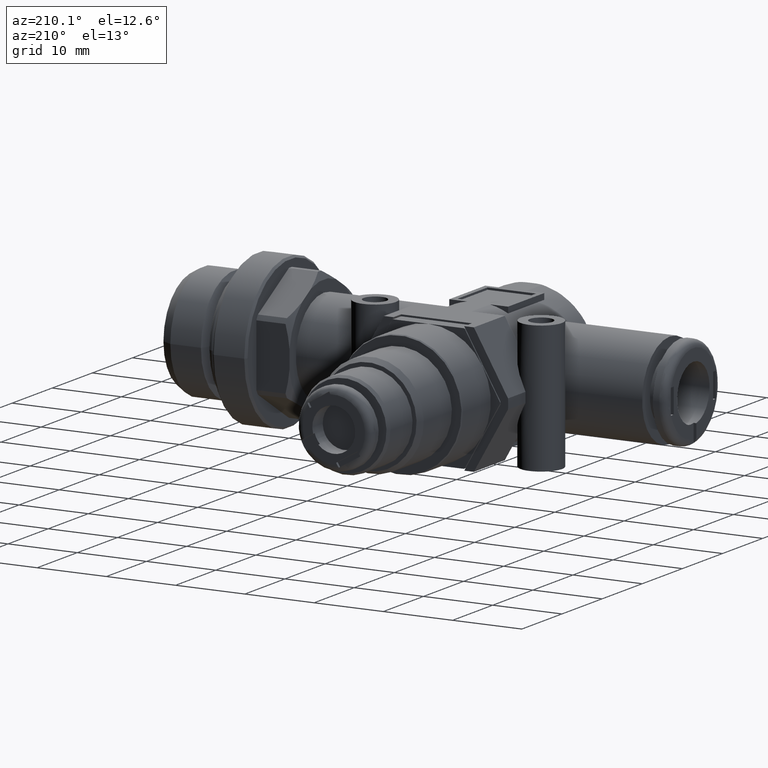
[diagram: clean part render]
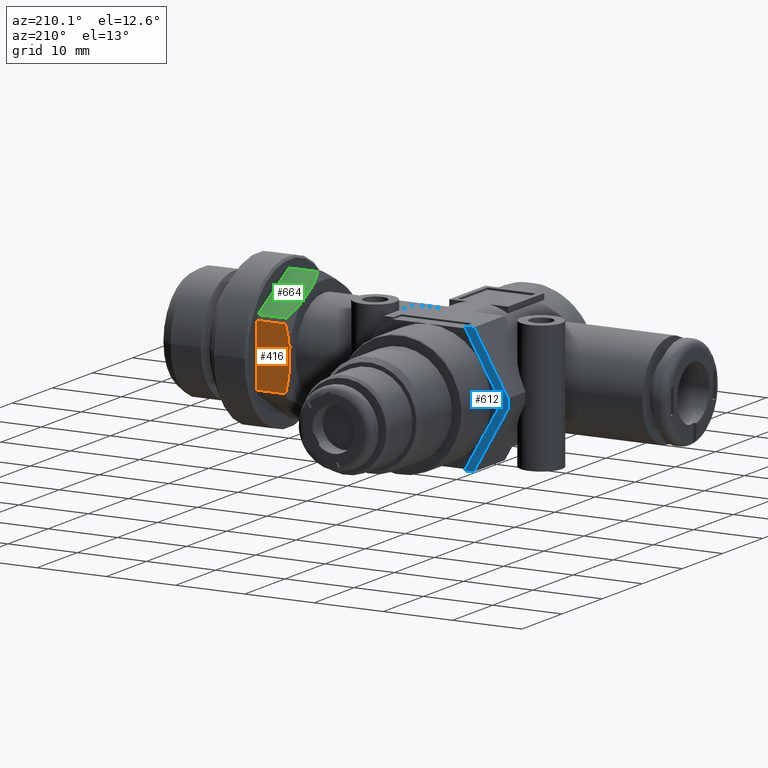
[diagram: same view with three faces highlighted in distinct colors, each labeled with its STEP entity id]
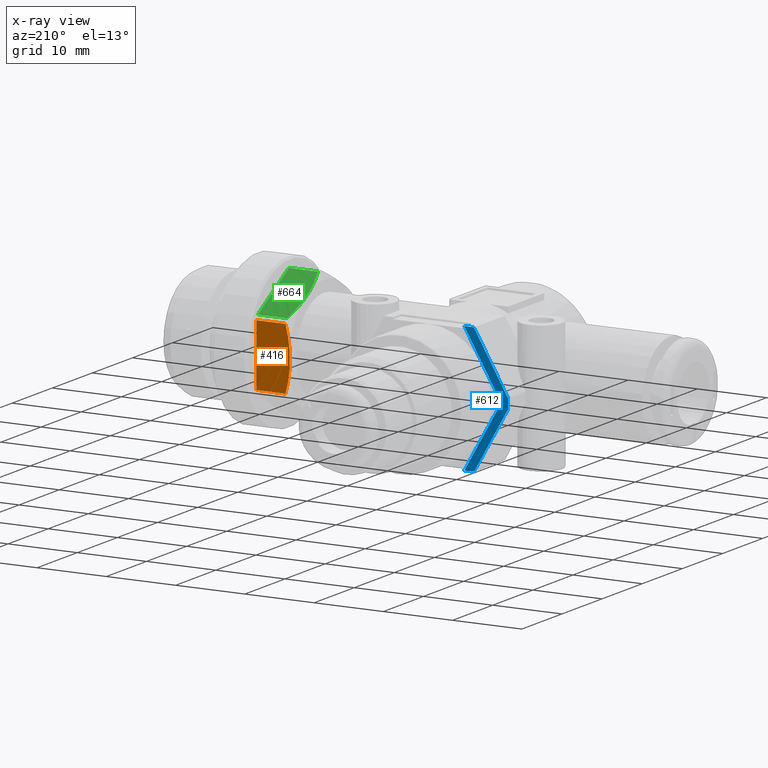
[diagram: x-ray of the same camera — body ghosted, the three highlighted faces saturated]
A machine part, auxiliary view with three faces highlighted in distinct colors.
The next image is the same camera in x-ray (body ghosted, the three faces saturated) — at least one of them is partly hidden behind the body in this view.
Their STEP definitions:

[orange] entity #416 — the highlighted planar face has unit normal (0, 1, 0).
#416 = ADVANCED_FACE( '', ( #923 ), #924, .T. );
#923 = FACE_OUTER_BOUND( '', #1608, .T. );
#924 = PLANE( '', #1609 );
#1608 = EDGE_LOOP( '', ( #2504, #2505, #2506, #2507, #2508, #2509 ) );
#1609 = AXIS2_PLACEMENT_3D( '', #2510, #2511, #2512 );
#2504 = ORIENTED_EDGE( '', *, *, #3780, .F. );
#2505 = ORIENTED_EDGE( '', *, *, #3867, .F. );
#2506 = ORIENTED_EDGE( '', *, *, #3868, .F. );
#2507 = ORIENTED_EDGE( '', *, *, #3869, .T. );
#2508 = ORIENTED_EDGE( '', *, *, #3870, .F. );
#2509 = ORIENTED_EDGE( '', *, *, #3871, .F. );
#2510 = CARTESIAN_POINT( '', ( 5.01000000000000, -4.90747728811182, -8.50000000000000 ) );
#2511 = DIRECTION( '', ( 0.000000000000000, 0.000000000000000, -1.00000000000000 ) );
#2512 = DIRECTION( '', ( -1.00000000000000, 0.000000000000000, 0.000000000000000 ) );
#3780 = EDGE_CURVE( '', #4461, #4463, #4464, .T. );
#3867 = EDGE_CURVE( '', #4597, #4461, #4598, .T. );
#3868 = EDGE_CURVE( '', #4599, #4597, #4600, .T. );
#3869 = EDGE_CURVE( '', #4599, #4601, #4602, .T. );
#3870 = EDGE_CURVE( '', #4603, #4601, #4604, .F. );
#3871 = EDGE_CURVE( '', #4463, #4603, #4605, .T. );
#4461 = VERTEX_POINT( '', #5596 );
#4463 = VERTEX_POINT( '', #5598 );
#4464 = LINE( '', #5599, #5600 );
#4597 = VERTEX_POINT( '', #5784 );
#4598 = B_SPLINE_CURVE_WITH_KNOTS( '', 3, ( #5785, #5786, #5787, #5788, #5789, #5790 ), .UNSPECIFIED., .F., .F., ( 4, 2, 4 ), ( 0.00678044909052865, 0.00838006962618044, 0.00997969016183223 ), .UNSPECIFIED. );
#4599 = VERTEX_POINT( '', #5791 );
#4600 = LINE( '', #5792, #5793 );
#4601 = VERTEX_POINT( '', #5794 );
#4602 = LINE( '', #5795, #5796 );
#4603 = VERTEX_POINT( '', #5797 );
#4604 = LINE( '', #5798, #5799 );
#4605 = B_SPLINE_CURVE_WITH_KNOTS( '', 3, ( #5800, #5801, #5802, #5803, #5804, #5805 ), .UNSPECIFIED., .F., .F., ( 4, 2, 4 ), ( 0.0126114541167359, 0.0142099054589780, 0.0158083568012202 ), .UNSPECIFIED. );
#5596 = CARTESIAN_POINT( '', ( 9.80000000000000, -1.30766968306220, -8.50000000000000 ) );
#5598 = CARTESIAN_POINT( '', ( 9.80000000000000, 1.30766968306220, -8.50000000000000 ) );
#5599 = CARTESIAN_POINT( '', ( 9.80000000000000, -4.90747728811182, -8.50000000000000 ) );
#5600 = VECTOR( '', #7001, 1000.00000000000 );
#5784 = CARTESIAN_POINT( '', ( 9.22264973081037, -4.46206230346462, -8.50000000000000 ) );
#5785 = CARTESIAN_POINT( '', ( 9.22264973081039, -4.46206230346462, -8.50000000000000 ) );
#5786 = CARTESIAN_POINT( '', ( 9.36126876643658, -3.94550428965619, -8.50000000000000 ) );
#5787 = CARTESIAN_POINT( '', ( 9.48308444475818, -3.42087643268451, -8.50000000000000 ) );
#5788 = CARTESIAN_POINT( '', ( 9.67949408845434, -2.36502868785143, -8.50000000000000 ) );
#5789 = CARTESIAN_POINT( '', ( 9.75356372534709, -1.83662427860852, -8.50000000000000 ) );
#5790 = CARTESIAN_POINT( '', ( 9.80000000000000, -1.30766968306220, -8.50000000000000 ) );
#5791 = CARTESIAN_POINT( '', ( 5.01000000000000, -4.46206230346462, -8.50000000000000 ) );
#5792 = CARTESIAN_POINT( '', ( 11.8000000000000, -4.46206230346462, -8.50000000000000 ) );
#5793 = VECTOR( '', #7107, 1000.00000000000 );
#5794 = CARTESIAN_POINT( '', ( 5.01000000000000, 4.46206230346462, -8.50000000000000 ) );
#5795 = CARTESIAN_POINT( '', ( 5.01000000000000, -4.90747728811182, -8.50000000000000 ) );
#5796 = VECTOR( '', #7108, 1000.00000000000 );
#5797 = CARTESIAN_POINT( '', ( 9.22264973081037, 4.46206230346462, -8.50000000000000 ) );
#5798 = CARTESIAN_POINT( '', ( 11.8000000000000, 4.46206230346462, -8.50000000000000 ) );
#5799 = VECTOR( '', #7109, 1000.00000000000 );
#5800 = CARTESIAN_POINT( '', ( 9.80000000000000, 1.30766968306220, -8.50000000000000 ) );
#5801 = CARTESIAN_POINT( '', ( 9.75343516979192, 1.83808865214399, -8.50000000000000 ) );
#5802 = CARTESIAN_POINT( '', ( 9.67849204307125, 2.37146689589535, -8.50000000000000 ) );
#5803 = CARTESIAN_POINT( '', ( 9.48167665029903, 3.42737993579828, -8.50000000000000 ) );
#5804 = CARTESIAN_POINT( '', ( 9.36069737749149, 3.94763354655977, -8.50000000000000 ) );
#5805 = CARTESIAN_POINT( '', ( 9.22264973081037, 4.46206230346462, -8.50000000000000 ) );
#7001 = DIRECTION( '', ( 0.000000000000000, 1.00000000000000, 0.000000000000000 ) );
#7107 = DIRECTION( '', ( 1.00000000000000, -0.000000000000000, -0.000000000000000 ) );
#7108 = DIRECTION( '', ( 0.000000000000000, 1.00000000000000, 0.000000000000000 ) );
#7109 = DIRECTION( '', ( 1.00000000000000, -0.000000000000000, -0.000000000000000 ) );

[blue] entity #612 — the highlighted planar face has unit normal (0, 1, 0).
#612 = ADVANCED_FACE( '', ( #1272 ), #1273, .T. );
#1272 = FACE_OUTER_BOUND( '', #1957, .T. );
#1273 = PLANE( '', #1958 );
#1957 = EDGE_LOOP( '', ( #3300, #3301, #3302, #3303, #3304, #3305, #3306, #3307 ) );
#1958 = AXIS2_PLACEMENT_3D( '', #3308, #3309, #3310 );
#3300 = ORIENTED_EDGE( '', *, *, #3787, .F. );
#3301 = ORIENTED_EDGE( '', *, *, #4005, .T. );
#3302 = ORIENTED_EDGE( '', *, *, #3665, .T. );
#3303 = ORIENTED_EDGE( '', *, *, #3985, .T. );
#3304 = ORIENTED_EDGE( '', *, *, #4046, .T. );
#3305 = ORIENTED_EDGE( '', *, *, #4053, .T. );
#3306 = ORIENTED_EDGE( '', *, *, #4157, .F. );
#3307 = ORIENTED_EDGE( '', *, *, #4158, .F. );
#3308 = CARTESIAN_POINT( '', ( -1.35828848168984E-012, 16.9000000000000, 1.16551733542192E-014 ) );
#3309 = DIRECTION( '', ( 0.000000000000000, 1.00000000000000, 0.000000000000000 ) );
#3310 = DIRECTION( '', ( 0.000000000000000, -0.000000000000000, 1.00000000000000 ) );
#3665 = EDGE_CURVE( '', #4260, #4258, #4261, .T. );
#3787 = EDGE_CURVE( '', #4473, #4474, #4475, .T. );
#3985 = EDGE_CURVE( '', #4258, #4773, #4775, .T. );
#4005 = EDGE_CURVE( '', #4473, #4260, #4807, .T. );
#4046 = EDGE_CURVE( '', #4773, #4867, #4869, .T. );
#4053 = EDGE_CURVE( '', #4867, #4877, #4879, .T. );
#4157 = EDGE_CURVE( '', #5010, #4877, #5011, .T. );
#4158 = EDGE_CURVE( '', #4474, #5010, #5012, .T. );
#4258 = VERTEX_POINT( '', #5125 );
#4260 = VERTEX_POINT( '', #5128 );
#4261 = LINE( '', #5129, #5130 );
#4473 = VERTEX_POINT( '', #5611 );
#4474 = VERTEX_POINT( '', #5612 );
#4475 = LINE( '', #5613, #5614 );
#4773 = VERTEX_POINT( '', #6258 );
#4775 = CIRCLE( '', #6261, 11.4499999999986 );
#4807 = LINE( '', #6332, #6333 );
#4867 = VERTEX_POINT( '', #6449 );
#4869 = LINE( '', #6452, #6453 );
#4877 = VERTEX_POINT( '', #6464 );
#4879 = LINE( '', #6467, #6468 );
#5010 = VERTEX_POINT( '', #6676 );
#5011 = LINE( '', #6677, #6678 );
#5012 = CIRCLE( '', #6679, 10.3500000000002 );
#5125 = CARTESIAN_POINT( '', ( -11.4282305532251, 16.9000000000000, -0.705724041203130 ) );
#5128 = CARTESIAN_POINT( '', ( -6.49519052838329, 16.9000000000000, -9.25000000000000 ) );
#5129 = CARTESIAN_POINT( '', ( -6.49519052838329, 16.9000000000000, -9.25000000000000 ) );
#5130 = VECTOR( '', #6863, 1000.00000000000 );
#5611 = CARTESIAN_POINT( '', ( -5.10954988232819, 16.9000000000000, -9.25000000000000 ) );
#5612 = CARTESIAN_POINT( '', ( -10.3485058101471, 16.9000000000000, -0.175862154403528 ) );
#5613 = CARTESIAN_POINT( '', ( -7.83752990424952, 16.9000000000000, -4.52499999999940 ) );
#5614 = VECTOR( '', #7010, 1000.00000000000 );
#6258 = CARTESIAN_POINT( '', ( -11.4282305532251, 16.9000000000000, 0.705724041203125 ) );
#6261 = AXIS2_PLACEMENT_3D( '', #7246, #7247, #7248 );
#6332 = CARTESIAN_POINT( '', ( 6.49519052838329, 16.9000000000000, -9.25000000000000 ) );
#6333 = VECTOR( '', #7267, 1000.00000000000 );
#6449 = CARTESIAN_POINT( '', ( -6.49519052838329, 16.9000000000000, 9.25000000000000 ) );
#6452 = CARTESIAN_POINT( '', ( -11.4282305532251, 16.9000000000000, 0.705724041203130 ) );
#6453 = VECTOR( '', #7319, 1000.00000000000 );
#6464 = CARTESIAN_POINT( '', ( -5.10954988232819, 16.9000000000000, 9.25000000000000 ) );
#6467 = CARTESIAN_POINT( '', ( -6.49519052838329, 16.9000000000000, 9.25000000000000 ) );
#6468 = VECTOR( '', #7324, 1000.00000000000 );
#6676 = CARTESIAN_POINT( '', ( -10.3485058101471, 16.9000000000000, 0.175862154403530 ) );
#6677 = CARTESIAN_POINT( '', ( -10.3485058101471, 16.9000000000000, 0.175862154403474 ) );
#6678 = VECTOR( '', #7431, 1000.00000000000 );
#6679 = AXIS2_PLACEMENT_3D( '', #7432, #7433, #7434 );
#6863 = DIRECTION( '', ( -0.500000000000000, 0.000000000000000, 0.866025403784438 ) );
#7010 = DIRECTION( '', ( -0.500000000000000, 0.000000000000000, 0.866025403784439 ) );
#7246 = CARTESIAN_POINT( '', ( -1.35828848168984E-012, 16.9000000000000, 1.16551733542192E-014 ) );
#7247 = DIRECTION( '', ( -0.000000000000000, 1.00000000000000, 0.000000000000000 ) );
#7248 = DIRECTION( '', ( 1.00000000000000, 0.000000000000000, 0.000000000000000 ) );
#7267 = DIRECTION( '', ( -1.00000000000000, 0.000000000000000, -2.67078150886606E-016 ) );
#7319 = DIRECTION( '', ( 0.500000000000000, 0.000000000000000, 0.866025403784439 ) );
#7324 = DIRECTION( '', ( 1.00000000000000, 0.000000000000000, 2.67078150886606E-016 ) );
#7431 = DIRECTION( '', ( 0.500000000000000, 0.000000000000000, 0.866025403784439 ) );
#7432 = CARTESIAN_POINT( '', ( 2.06432093641240E-013, 16.9000000000000, 2.03287907341032E-016 ) );
#7433 = DIRECTION( '', ( -0.000000000000000, 1.00000000000000, 0.000000000000000 ) );
#7434 = DIRECTION( '', ( 1.00000000000000, 0.000000000000000, 0.000000000000000 ) );

[green] entity #664 — the highlighted planar face has unit normal (-0, 0.5, 0.866).
#664 = ADVANCED_FACE( '', ( #1362 ), #1363, .T. );
#1362 = FACE_OUTER_BOUND( '', #2047, .T. );
#1363 = PLANE( '', #2048 );
#2047 = EDGE_LOOP( '', ( #3526, #3527, #3528, #3529, #3530, #3531 ) );
#2048 = AXIS2_PLACEMENT_3D( '', #3532, #3533, #3534 );
#3526 = ORIENTED_EDGE( '', *, *, #3778, .F. );
#3527 = ORIENTED_EDGE( '', *, *, #3797, .F. );
#3528 = ORIENTED_EDGE( '', *, *, #3910, .F. );
#3529 = ORIENTED_EDGE( '', *, *, #4184, .T. );
#3530 = ORIENTED_EDGE( '', *, *, #4207, .F. );
#3531 = ORIENTED_EDGE( '', *, *, #3971, .F. );
#3532 = CARTESIAN_POINT( '', ( 5.01000000000000, -9.81495457622364, 0.000000000000000 ) );
#3533 = DIRECTION( '', ( 0.000000000000000, -0.866025403784439, -0.500000000000000 ) );
#3534 = DIRECTION( '', ( 0.000000000000000, 0.500000000000000, -0.866025403784439 ) );
#3778 = EDGE_CURVE( '', #4457, #4459, #4460, .T. );
#3797 = EDGE_CURVE( '', #4489, #4457, #4491, .T. );
#3910 = EDGE_CURVE( '', #4662, #4489, #4664, .T. );
#3971 = EDGE_CURVE( '', #4459, #4752, #4754, .T. );
#4184 = EDGE_CURVE( '', #4662, #5041, #5043, .T. );
#4207 = EDGE_CURVE( '', #4752, #5041, #5070, .F. );
#4457 = VERTEX_POINT( '', #5591 );
#4459 = VERTEX_POINT( '', #5593 );
#4460 = LINE( '', #5594, #5595 );
#4489 = VERTEX_POINT( '', #5637 );
#4491 = B_SPLINE_CURVE_WITH_KNOTS( '', 3, ( #5639, #5640, #5641, #5642, #5643, #5644 ), .UNSPECIFIED., .F., .F., ( 4, 2, 4 ), ( 0.00770383222227073, 0.00930865053685560, 0.0109134688514405 ), .UNSPECIFIED. );
#4662 = VERTEX_POINT( '', #5883 );
#4664 = LINE( '', #5885, #5886 );
#4752 = VERTEX_POINT( '', #6222 );
#4754 = B_SPLINE_CURVE_WITH_KNOTS( '', 3, ( #6224, #6225, #6226, #6227, #6228, #6229 ), .UNSPECIFIED., .F., .F., ( 4, 2, 4 ), ( 0.0135400158942312, 0.0151419846389399, 0.0167439533836486 ), .UNSPECIFIED. );
#5041 = VERTEX_POINT( '', #6779 );
#5043 = LINE( '', #6781, #6782 );
#5070 = LINE( '', #6811, #6812 );
#5591 = CARTESIAN_POINT( '', ( 9.80000000000000, -8.01505077369883, -3.11752483470939 ) );
#5593 = CARTESIAN_POINT( '', ( 9.80000000000000, -6.70738109063663, -5.38247516529061 ) );
#5594 = CARTESIAN_POINT( '', ( 9.80000000000000, -9.81495457622364, 0.000000000000000 ) );
#5595 = VECTOR( '', #6997, 1000.00000000000 );
#5637 = CARTESIAN_POINT( '', ( 9.22264973081037, -9.59224708390004, -0.385740691930729 ) );
#5639 = CARTESIAN_POINT( '', ( 9.22264973081037, -9.59224708390004, -0.385740691930728 ) );
#5640 = CARTESIAN_POINT( '', ( 9.36198061961078, -9.33264173151904, -0.835390352171451 ) );
#5641 = CARTESIAN_POINT( '', ( 9.48393118094190, -9.06956007640114, -1.29106114537496 ) );
#5642 = CARTESIAN_POINT( '', ( 9.67947916487017, -8.54358776799443, -2.20207190690967 ) );
#5643 = CARTESIAN_POINT( '', ( 9.75351769198248, -8.27979025400003, -2.65898260405833 ) );
#5644 = CARTESIAN_POINT( '', ( 9.80000000000000, -8.01505077369883, -3.11752483470939 ) );
#5883 = CARTESIAN_POINT( '', ( 5.01000000000000, -9.59224708390004, -0.385740691930732 ) );
#5885 = CARTESIAN_POINT( '', ( 11.8000000000000, -9.59224708390004, -0.385740691930729 ) );
#5886 = VECTOR( '', #7159, 1000.00000000000 );
#6222 = CARTESIAN_POINT( '', ( 9.22264973081037, -5.13018478043542, -8.11425930806927 ) );
#6224 = CARTESIAN_POINT( '', ( 9.80000000000000, -6.70738109063663, -5.38247516529061 ) );
#6225 = CARTESIAN_POINT( '', ( 9.75303989612138, -6.43992032919962, -5.84573079313057 ) );
#6226 = CARTESIAN_POINT( '', ( 9.67734007801851, -6.17202237318509, -6.30974366419158 ) );
#6227 = CARTESIAN_POINT( '', ( 9.48112090846815, -5.64640839477837, -7.22013377996044 ) );
#6228 = CARTESIAN_POINT( '', ( 9.36048297593033, -5.38699967968179, -7.66944285443388 ) );
#6229 = CARTESIAN_POINT( '', ( 9.22264973081037, -5.13018478043542, -8.11425930806927 ) );
#6779 = CARTESIAN_POINT( '', ( 5.01000000000000, -5.13018478043542, -8.11425930806926 ) );
#6781 = CARTESIAN_POINT( '', ( 5.01000000000000, -9.81495457622364, 0.000000000000000 ) );
#6782 = VECTOR( '', #7455, 1000.00000000000 );
#6811 = CARTESIAN_POINT( '', ( 11.8000000000000, -5.13018478043542, -8.11425930806927 ) );
#6812 = VECTOR( '', #7476, 1000.00000000000 );
#6997 = DIRECTION( '', ( 0.000000000000000, 0.500000000000000, -0.866025403784439 ) );
#7159 = DIRECTION( '', ( 1.00000000000000, -0.000000000000000, -0.000000000000000 ) );
#7455 = DIRECTION( '', ( 0.000000000000000, 0.500000000000000, -0.866025403784439 ) );
#7476 = DIRECTION( '', ( 1.00000000000000, -0.000000000000000, -0.000000000000000 ) );